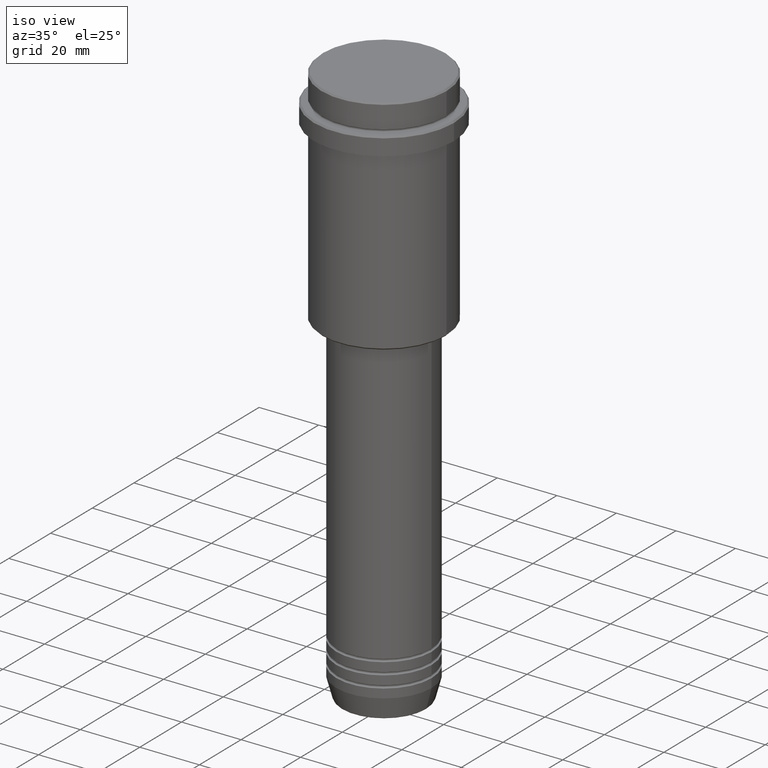
[diagram: clean part render]
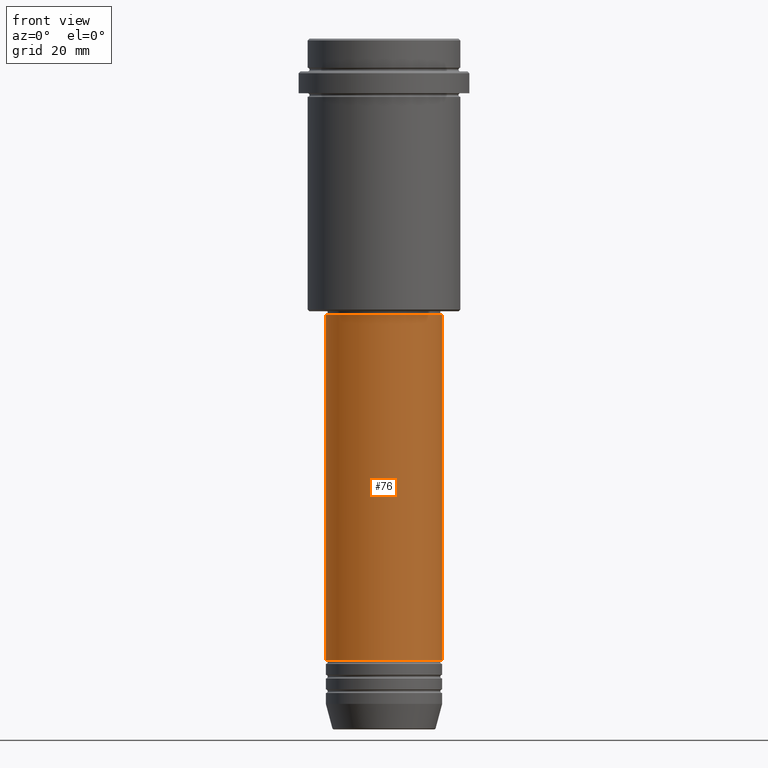
[diagram: tour spotlight — one face highlighted and labeled with its STEP entity id]
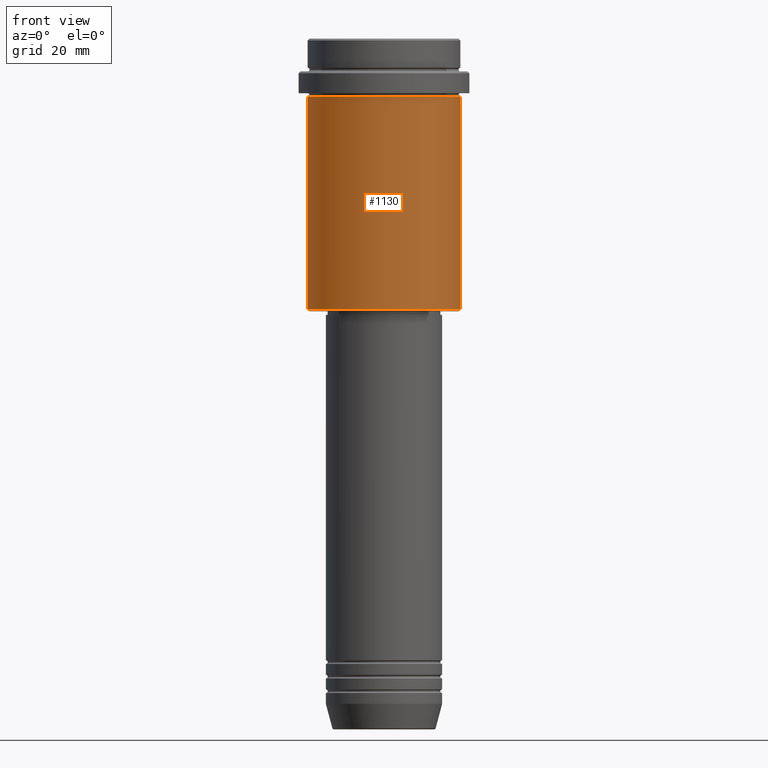
[diagram: tour spotlight — one face highlighted and labeled with its STEP entity id]
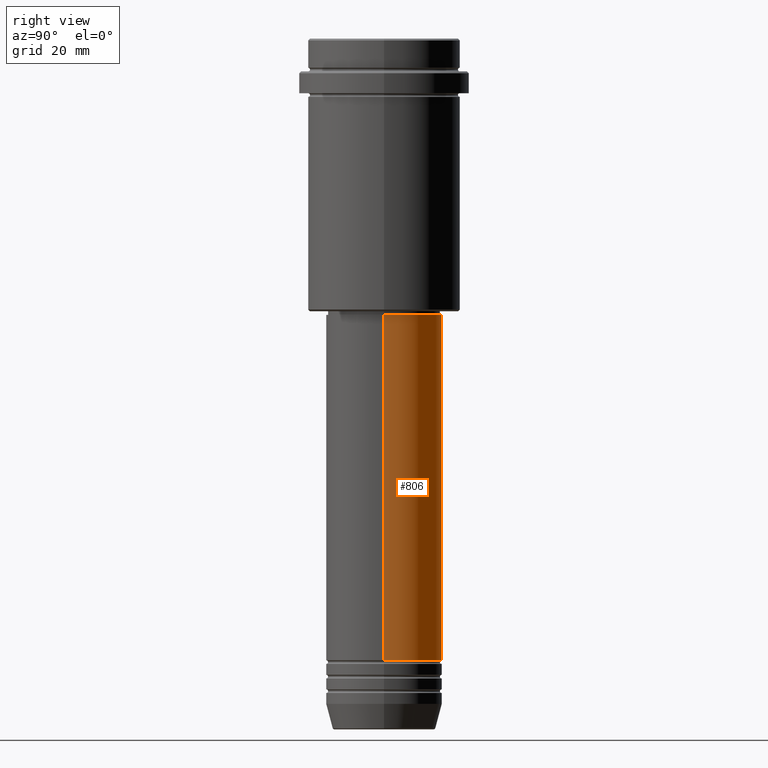
[diagram: tour spotlight — one face highlighted and labeled with its STEP entity id]
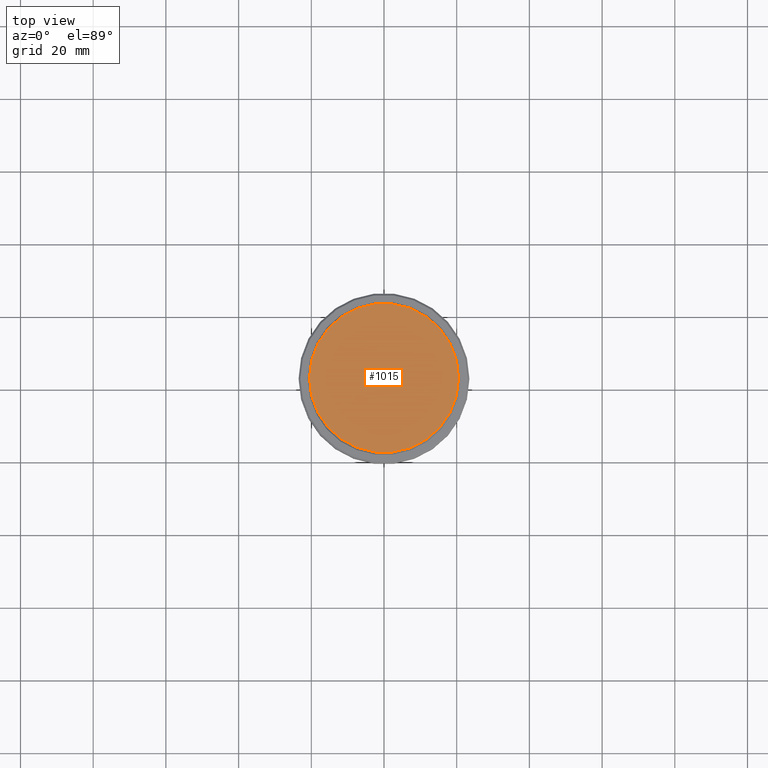
[diagram: tour spotlight — one face highlighted and labeled with its STEP entity id]
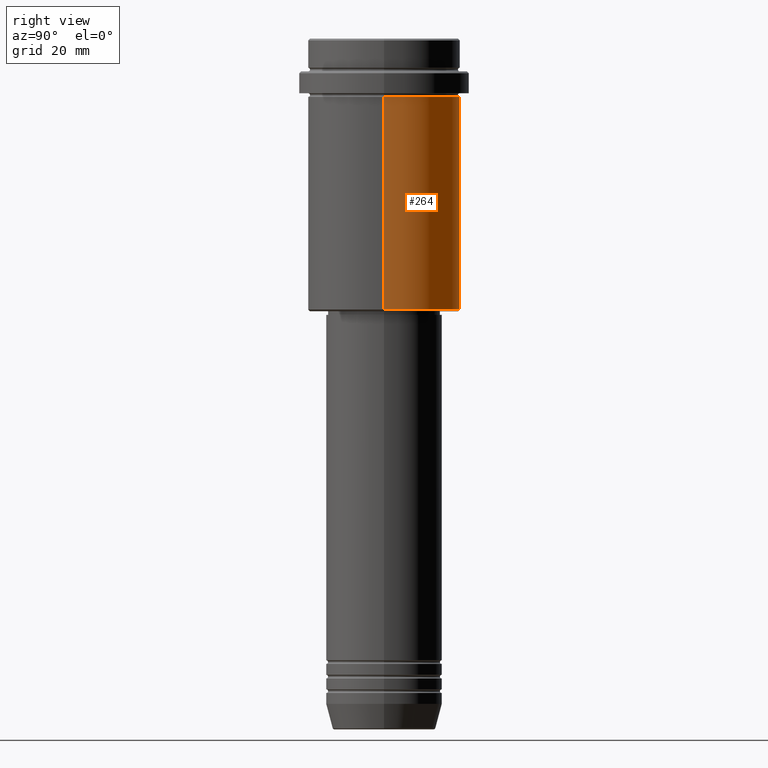
[diagram: tour spotlight — one face highlighted and labeled with its STEP entity id]
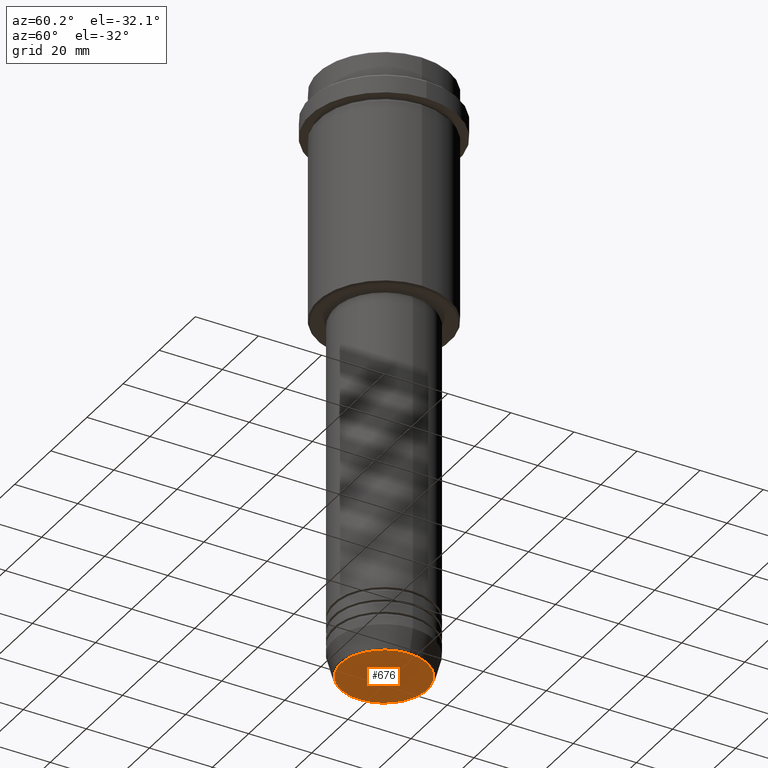
[diagram: tour spotlight — one face highlighted and labeled with its STEP entity id]
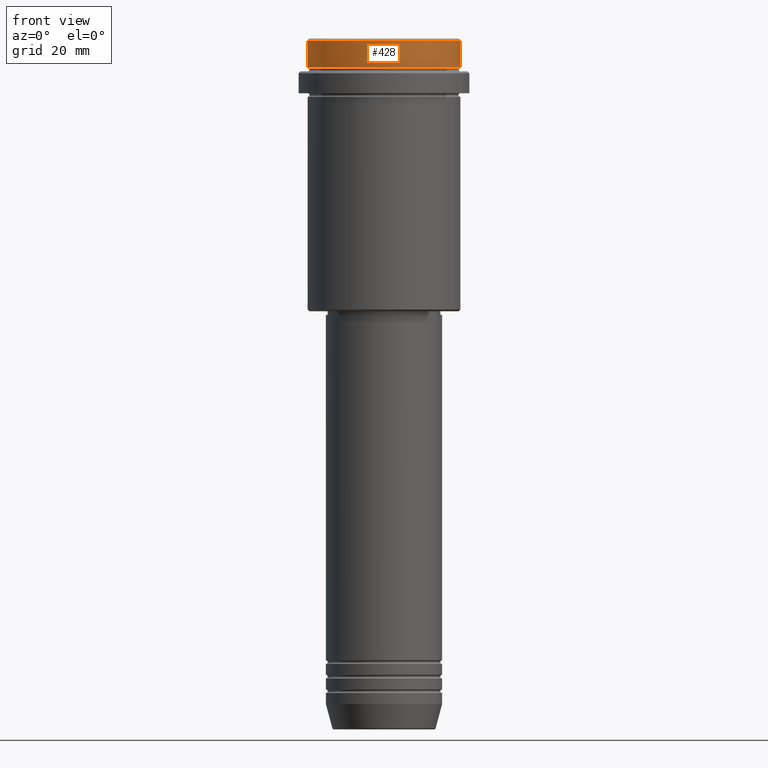
[diagram: tour spotlight — one face highlighted and labeled with its STEP entity id]
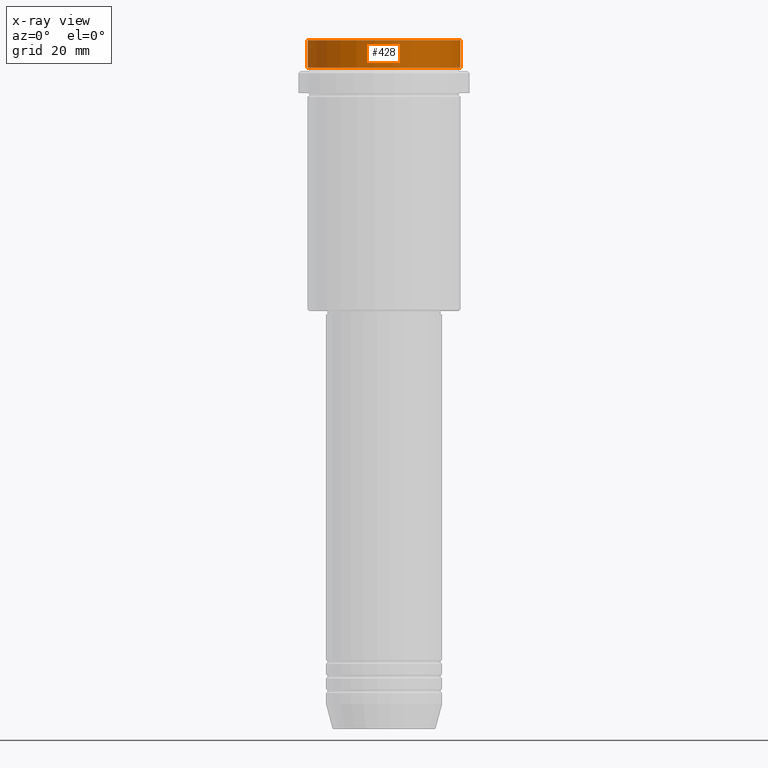
[diagram: x-ray of the same camera — body ghosted, this tour face saturated]
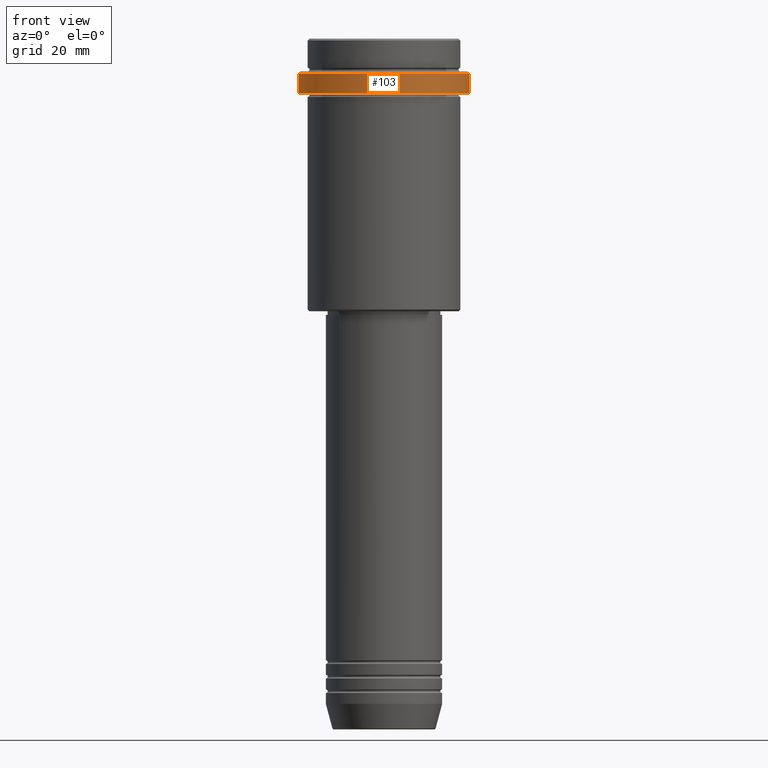
[diagram: tour spotlight — one face highlighted and labeled with its STEP entity id]
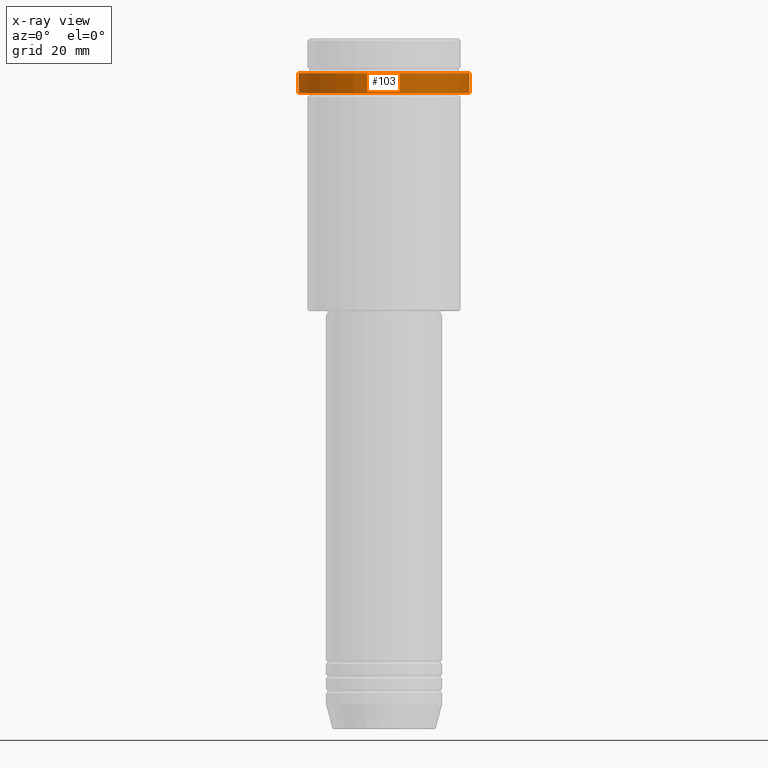
[diagram: x-ray of the same camera — body ghosted, this tour face saturated]
A machine part: a face-by-face anatomy tour. The part has 52 B-rep faces; the first image is the clean iso view, then the 8 largest visible faces are spotlighted one at a time (largest first), each with its STEP entity span.

Face 1 — front view, entity #76. In plain terms, the highlighted cylindrical surface (partial cylindrical patch) has radius 16 mm, axis along (-0, -0, 1).
Definition (entity closure, byte-faithful):
#76 = ADVANCED_FACE ( 'NONE', ( #1119 ), #256, .T. ) ;
#122 = EDGE_CURVE ( 'NONE', #443, #667, #200, .T. ) ;
#200 = CIRCLE ( 'NONE', #1136, 16.00000000000000000 ) ;
#235 = CARTESIAN_POINT ( 'NONE',  ( 0.000000000000000000, 0.000000000000000000, -76.00000000000000000 ) ) ;
#256 = CYLINDRICAL_SURFACE ( 'NONE', #268, 16.00000000000000000 ) ;
#262 = CARTESIAN_POINT ( 'NONE',  ( 16.00000000000000000, 0.000000000000000000, 0.000000000000000000 ) ) ;
#268 = AXIS2_PLACEMENT_3D ( 'NONE', #1017, #904, #831 ) ;
#359 = DIRECTION ( 'NONE',  ( -0.000000000000000000, -0.000000000000000000, 1.000000000000000000 ) ) ;
#370 = CARTESIAN_POINT ( 'NONE',  ( -16.00000000000000355, 1.959434878635765526E-15, -76.00000000000000000 ) ) ;
#373 = DIRECTION ( 'NONE',  ( -0.000000000000000000, -0.000000000000000000, 1.000000000000000000 ) ) ;
#407 = EDGE_CURVE ( 'NONE', #443, #463, #910, .T. ) ;
#443 = VERTEX_POINT ( 'NONE', #795 ) ;
#463 = VERTEX_POINT ( 'NONE', #370 ) ;
#482 = ORIENTED_EDGE ( 'NONE', *, *, #1348, .F. ) ;
#593 = DIRECTION ( 'NONE',  ( -0.000000000000000000, -0.000000000000000000, 1.000000000000000000 ) ) ;
#667 = VERTEX_POINT ( 'NONE', #1131 ) ;
#722 = CARTESIAN_POINT ( 'NONE',  ( 16.00000000000000355, 0.000000000000000000, -76.00000000000000000 ) ) ;
#723 = EDGE_LOOP ( 'NONE', ( #1129, #1149, #814, #482 ) ) ;
#725 = DIRECTION ( 'NONE',  ( 1.000000000000000000, 0.000000000000000000, 0.000000000000000000 ) ) ;
#735 = AXIS2_PLACEMENT_3D ( 'NONE', #235, #373, #1221 ) ;
#795 = CARTESIAN_POINT ( 'NONE',  ( -16.00000000000000000, 1.959434878635765131E-15, -170.9999999999998863 ) ) ;
#814 = ORIENTED_EDGE ( 'NONE', *, *, #868, .T. ) ;
#820 = CARTESIAN_POINT ( 'NONE',  ( 0.000000000000000000, 0.000000000000000000, -170.9999999999998863 ) ) ;
#831 = DIRECTION ( 'NONE',  ( 1.000000000000000000, 0.000000000000000000, 0.000000000000000000 ) ) ;
#868 = EDGE_CURVE ( 'NONE', #667, #992, #1242, .T. ) ;
#904 = DIRECTION ( 'NONE',  ( -0.000000000000000000, -0.000000000000000000, 1.000000000000000000 ) ) ;
#910 = LINE ( 'NONE', #1099, #1230 ) ;
#992 = VERTEX_POINT ( 'NONE', #722 ) ;
#1017 = CARTESIAN_POINT ( 'NONE',  ( 0.000000000000000000, 0.000000000000000000, 0.000000000000000000 ) ) ;
#1099 = CARTESIAN_POINT ( 'NONE',  ( -16.00000000000000000, 1.959434878635765131E-15, 0.000000000000000000 ) ) ;
#1105 = DIRECTION ( 'NONE',  ( -0.000000000000000000, -0.000000000000000000, 1.000000000000000000 ) ) ;
#1119 = FACE_OUTER_BOUND ( 'NONE', #723, .T. ) ;
#1129 = ORIENTED_EDGE ( 'NONE', *, *, #407, .F. ) ;
#1131 = CARTESIAN_POINT ( 'NONE',  ( 16.00000000000000000, 0.000000000000000000, -170.9999999999998863 ) ) ;
#1136 = AXIS2_PLACEMENT_3D ( 'NONE', #820, #593, #725 ) ;
#1149 = ORIENTED_EDGE ( 'NONE', *, *, #122, .T. ) ;
#1209 = CIRCLE ( 'NONE', #735, 16.00000000000000355 ) ;
#1221 = DIRECTION ( 'NONE',  ( 1.000000000000000000, 0.000000000000000000, 0.000000000000000000 ) ) ;
#1230 = VECTOR ( 'NONE', #1105, 1000.000000000000000 ) ;
#1242 = LINE ( 'NONE', #262, #1411 ) ;
#1348 = EDGE_CURVE ( 'NONE', #463, #992, #1209, .T. ) ;
#1411 = VECTOR ( 'NONE', #359, 1000.000000000000000 ) ;

Face 2 — front view, entity #1130. In plain terms, the highlighted cylindrical surface (partial cylindrical patch) has radius 21 mm, axis along (-0, -0, 1).
Definition (entity closure, byte-faithful):
#68 = DIRECTION ( 'NONE',  ( 1.000000000000000000, 0.000000000000000000, 0.000000000000000000 ) ) ;
#114 = AXIS2_PLACEMENT_3D ( 'NONE', #1091, #539, #665 ) ;
#171 = EDGE_LOOP ( 'NONE', ( #494, #1106, #1286, #876 ) ) ;
#176 = DIRECTION ( 'NONE',  ( -0.000000000000000000, -0.000000000000000000, 1.000000000000000000 ) ) ;
#217 = CARTESIAN_POINT ( 'NONE',  ( 0.000000000000000000, 0.000000000000000000, -74.49999999999998579 ) ) ;
#270 = VECTOR ( 'NONE', #757, 1000.000000000000000 ) ;
#273 = EDGE_CURVE ( 'NONE', #677, #1109, #1387, .T. ) ;
#280 = LINE ( 'NONE', #718, #779 ) ;
#300 = CARTESIAN_POINT ( 'NONE',  ( 0.000000000000000000, 0.000000000000000000, -16.00000000000000355 ) ) ;
#343 = CIRCLE ( 'NONE', #732, 21.00000000000000000 ) ;
#450 = CYLINDRICAL_SURFACE ( 'NONE', #114, 21.00000000000000000 ) ;
#478 = VERTEX_POINT ( 'NONE', #675 ) ;
#485 = CIRCLE ( 'NONE', #796, 21.00000000000000000 ) ;
#494 = ORIENTED_EDGE ( 'NONE', *, *, #273, .F. ) ;
#513 = DIRECTION ( 'NONE',  ( -0.000000000000000000, -0.000000000000000000, 1.000000000000000000 ) ) ;
#539 = DIRECTION ( 'NONE',  ( -0.000000000000000000, -0.000000000000000000, 1.000000000000000000 ) ) ;
#602 = EDGE_CURVE ( 'NONE', #1334, #478, #280, .T. ) ;
#665 = DIRECTION ( 'NONE',  ( 1.000000000000000000, 0.000000000000000000, 0.000000000000000000 ) ) ;
#675 = CARTESIAN_POINT ( 'NONE',  ( 21.00000000000000000, 0.000000000000000000, -16.00000000000000355 ) ) ;
#677 = VERTEX_POINT ( 'NONE', #841 ) ;
#718 = CARTESIAN_POINT ( 'NONE',  ( 21.00000000000000000, 0.000000000000000000, 0.000000000000000000 ) ) ;
#732 = AXIS2_PLACEMENT_3D ( 'NONE', #300, #176, #68 ) ;
#734 = EDGE_CURVE ( 'NONE', #677, #1334, #485, .T. ) ;
#757 = DIRECTION ( 'NONE',  ( -0.000000000000000000, -0.000000000000000000, 1.000000000000000000 ) ) ;
#779 = VECTOR ( 'NONE', #513, 1000.000000000000000 ) ;
#796 = AXIS2_PLACEMENT_3D ( 'NONE', #217, #866, #1195 ) ;
#799 = CARTESIAN_POINT ( 'NONE',  ( 21.00000000000000000, 0.000000000000000000, -74.49999999999998579 ) ) ;
#841 = CARTESIAN_POINT ( 'NONE',  ( -21.00000000000000000, 2.571758278209441661E-15, -74.49999999999998579 ) ) ;
#851 = CARTESIAN_POINT ( 'NONE',  ( -21.00000000000000000, 2.571758278209441661E-15, 0.000000000000000000 ) ) ;
#866 = DIRECTION ( 'NONE',  ( -0.000000000000000000, -0.000000000000000000, 1.000000000000000000 ) ) ;
#876 = ORIENTED_EDGE ( 'NONE', *, *, #1028, .F. ) ;
#997 = FACE_OUTER_BOUND ( 'NONE', #171, .T. ) ;
#1028 = EDGE_CURVE ( 'NONE', #1109, #478, #343, .T. ) ;
#1091 = CARTESIAN_POINT ( 'NONE',  ( 0.000000000000000000, 0.000000000000000000, 0.000000000000000000 ) ) ;
#1106 = ORIENTED_EDGE ( 'NONE', *, *, #734, .T. ) ;
#1109 = VERTEX_POINT ( 'NONE', #1203 ) ;
#1130 = ADVANCED_FACE ( 'NONE', ( #997 ), #450, .T. ) ;
#1195 = DIRECTION ( 'NONE',  ( -1.000000000000000000, 0.000000000000000000, 0.000000000000000000 ) ) ;
#1203 = CARTESIAN_POINT ( 'NONE',  ( -21.00000000000000000, 2.571758278209441661E-15, -16.00000000000000355 ) ) ;
#1286 = ORIENTED_EDGE ( 'NONE', *, *, #602, .T. ) ;
#1334 = VERTEX_POINT ( 'NONE', #799 ) ;
#1387 = LINE ( 'NONE', #851, #270 ) ;

Face 3 — right view, entity #806. In plain terms, the highlighted cylindrical surface (partial cylindrical patch) has radius 16 mm, axis along (-0, -0, 1).
Definition (entity closure, byte-faithful):
#262 = CARTESIAN_POINT ( 'NONE',  ( 16.00000000000000000, 0.000000000000000000, 0.000000000000000000 ) ) ;
#359 = DIRECTION ( 'NONE',  ( -0.000000000000000000, -0.000000000000000000, 1.000000000000000000 ) ) ;
#370 = CARTESIAN_POINT ( 'NONE',  ( -16.00000000000000355, 1.959434878635765526E-15, -76.00000000000000000 ) ) ;
#391 = CIRCLE ( 'NONE', #411, 16.00000000000000355 ) ;
#407 = EDGE_CURVE ( 'NONE', #443, #463, #910, .T. ) ;
#411 = AXIS2_PLACEMENT_3D ( 'NONE', #949, #591, #713 ) ;
#443 = VERTEX_POINT ( 'NONE', #795 ) ;
#455 = ORIENTED_EDGE ( 'NONE', *, *, #868, .F. ) ;
#463 = VERTEX_POINT ( 'NONE', #370 ) ;
#502 = DIRECTION ( 'NONE',  ( -0.000000000000000000, -0.000000000000000000, 1.000000000000000000 ) ) ;
#519 = EDGE_CURVE ( 'NONE', #992, #463, #391, .T. ) ;
#559 = EDGE_CURVE ( 'NONE', #667, #443, #1115, .T. ) ;
#591 = DIRECTION ( 'NONE',  ( -0.000000000000000000, -0.000000000000000000, 1.000000000000000000 ) ) ;
#667 = VERTEX_POINT ( 'NONE', #1131 ) ;
#710 = AXIS2_PLACEMENT_3D ( 'NONE', #1150, #502, #1039 ) ;
#713 = DIRECTION ( 'NONE',  ( 1.000000000000000000, 0.000000000000000000, 0.000000000000000000 ) ) ;
#722 = CARTESIAN_POINT ( 'NONE',  ( 16.00000000000000355, 0.000000000000000000, -76.00000000000000000 ) ) ;
#795 = CARTESIAN_POINT ( 'NONE',  ( -16.00000000000000000, 1.959434878635765131E-15, -170.9999999999998863 ) ) ;
#806 = ADVANCED_FACE ( 'NONE', ( #854 ), #1285, .T. ) ;
#807 = DIRECTION ( 'NONE',  ( -0.000000000000000000, -0.000000000000000000, 1.000000000000000000 ) ) ;
#808 = ORIENTED_EDGE ( 'NONE', *, *, #407, .T. ) ;
#854 = FACE_OUTER_BOUND ( 'NONE', #1320, .T. ) ;
#868 = EDGE_CURVE ( 'NONE', #667, #992, #1242, .T. ) ;
#910 = LINE ( 'NONE', #1099, #1230 ) ;
#949 = CARTESIAN_POINT ( 'NONE',  ( 0.000000000000000000, 0.000000000000000000, -76.00000000000000000 ) ) ;
#992 = VERTEX_POINT ( 'NONE', #722 ) ;
#1018 = DIRECTION ( 'NONE',  ( 1.000000000000000000, 0.000000000000000000, 0.000000000000000000 ) ) ;
#1023 = CARTESIAN_POINT ( 'NONE',  ( 0.000000000000000000, 0.000000000000000000, 0.000000000000000000 ) ) ;
#1039 = DIRECTION ( 'NONE',  ( 1.000000000000000000, 0.000000000000000000, 0.000000000000000000 ) ) ;
#1095 = AXIS2_PLACEMENT_3D ( 'NONE', #1023, #807, #1018 ) ;
#1099 = CARTESIAN_POINT ( 'NONE',  ( -16.00000000000000000, 1.959434878635765131E-15, 0.000000000000000000 ) ) ;
#1105 = DIRECTION ( 'NONE',  ( -0.000000000000000000, -0.000000000000000000, 1.000000000000000000 ) ) ;
#1115 = CIRCLE ( 'NONE', #710, 16.00000000000000000 ) ;
#1131 = CARTESIAN_POINT ( 'NONE',  ( 16.00000000000000000, 0.000000000000000000, -170.9999999999998863 ) ) ;
#1150 = CARTESIAN_POINT ( 'NONE',  ( 0.000000000000000000, 0.000000000000000000, -170.9999999999998863 ) ) ;
#1177 = ORIENTED_EDGE ( 'NONE', *, *, #559, .T. ) ;
#1230 = VECTOR ( 'NONE', #1105, 1000.000000000000000 ) ;
#1242 = LINE ( 'NONE', #262, #1411 ) ;
#1285 = CYLINDRICAL_SURFACE ( 'NONE', #1095, 16.00000000000000000 ) ;
#1292 = ORIENTED_EDGE ( 'NONE', *, *, #519, .F. ) ;
#1320 = EDGE_LOOP ( 'NONE', ( #1177, #808, #1292, #455 ) ) ;
#1411 = VECTOR ( 'NONE', #359, 1000.000000000000000 ) ;

Face 4 — top view, entity #1015. In plain terms, the highlighted planar face has unit normal (0, -0, 1).
Definition (entity closure, byte-faithful):
#62 = AXIS2_PLACEMENT_3D ( 'NONE', #717, #501, #929 ) ;
#70 = ORIENTED_EDGE ( 'NONE', *, *, #714, .T. ) ;
#91 = DIRECTION ( 'NONE',  ( 1.000000000000000000, 0.000000000000000000, 0.000000000000000000 ) ) ;
#197 = FACE_OUTER_BOUND ( 'NONE', #517, .T. ) ;
#247 = VERTEX_POINT ( 'NONE', #860 ) ;
#295 = CARTESIAN_POINT ( 'NONE',  ( 0.000000000000000000, 0.000000000000000000, 0.000000000000000000 ) ) ;
#365 = AXIS2_PLACEMENT_3D ( 'NONE', #1304, #1399, #525 ) ;
#408 = PLANE ( 'NONE',  #62 ) ;
#501 = DIRECTION ( 'NONE',  ( 0.000000000000000000, -0.000000000000000000, 1.000000000000000000 ) ) ;
#517 = EDGE_LOOP ( 'NONE', ( #70, #1374 ) ) ;
#525 = DIRECTION ( 'NONE',  ( 1.000000000000000000, 0.000000000000000000, 0.000000000000000000 ) ) ;
#549 = CARTESIAN_POINT ( 'NONE',  ( -20.49999999999998934, 0.000000000000000000, 0.000000000000000000 ) ) ;
#616 = CIRCLE ( 'NONE', #365, 20.49999999999998934 ) ;
#714 = EDGE_CURVE ( 'NONE', #766, #247, #616, .T. ) ;
#717 = CARTESIAN_POINT ( 'NONE',  ( 0.000000000000000000, 0.000000000000000000, 0.000000000000000000 ) ) ;
#727 = EDGE_CURVE ( 'NONE', #247, #766, #1389, .T. ) ;
#766 = VERTEX_POINT ( 'NONE', #549 ) ;
#823 = AXIS2_PLACEMENT_3D ( 'NONE', #295, #955, #91 ) ;
#860 = CARTESIAN_POINT ( 'NONE',  ( 20.49999999999998934, 2.541142108230757480E-15, 0.000000000000000000 ) ) ;
#929 = DIRECTION ( 'NONE',  ( 1.000000000000000000, 0.000000000000000000, 0.000000000000000000 ) ) ;
#955 = DIRECTION ( 'NONE',  ( -0.000000000000000000, -0.000000000000000000, 1.000000000000000000 ) ) ;
#1015 = ADVANCED_FACE ( 'NONE', ( #197 ), #408, .T. ) ;
#1304 = CARTESIAN_POINT ( 'NONE',  ( 0.000000000000000000, 0.000000000000000000, 0.000000000000000000 ) ) ;
#1374 = ORIENTED_EDGE ( 'NONE', *, *, #727, .T. ) ;
#1389 = CIRCLE ( 'NONE', #823, 20.49999999999998934 ) ;
#1399 = DIRECTION ( 'NONE',  ( -0.000000000000000000, -0.000000000000000000, 1.000000000000000000 ) ) ;

Face 5 — right view, entity #264. In plain terms, the highlighted cylindrical surface (partial cylindrical patch) has radius 21 mm, axis along (-0, -0, 1).
Definition (entity closure, byte-faithful):
#105 = FACE_OUTER_BOUND ( 'NONE', #1102, .T. ) ;
#125 = EDGE_CURVE ( 'NONE', #1334, #677, #885, .T. ) ;
#159 = AXIS2_PLACEMENT_3D ( 'NONE', #195, #988, #1415 ) ;
#173 = CARTESIAN_POINT ( 'NONE',  ( 0.000000000000000000, 0.000000000000000000, -74.49999999999998579 ) ) ;
#195 = CARTESIAN_POINT ( 'NONE',  ( 0.000000000000000000, 0.000000000000000000, 0.000000000000000000 ) ) ;
#218 = CYLINDRICAL_SURFACE ( 'NONE', #159, 21.00000000000000000 ) ;
#229 = CIRCLE ( 'NONE', #619, 21.00000000000000000 ) ;
#234 = ORIENTED_EDGE ( 'NONE', *, *, #273, .T. ) ;
#264 = ADVANCED_FACE ( 'NONE', ( #105 ), #218, .T. ) ;
#270 = VECTOR ( 'NONE', #757, 1000.000000000000000 ) ;
#273 = EDGE_CURVE ( 'NONE', #677, #1109, #1387, .T. ) ;
#280 = LINE ( 'NONE', #718, #779 ) ;
#387 = AXIS2_PLACEMENT_3D ( 'NONE', #173, #1252, #1036 ) ;
#478 = VERTEX_POINT ( 'NONE', #675 ) ;
#513 = DIRECTION ( 'NONE',  ( -0.000000000000000000, -0.000000000000000000, 1.000000000000000000 ) ) ;
#602 = EDGE_CURVE ( 'NONE', #1334, #478, #280, .T. ) ;
#619 = AXIS2_PLACEMENT_3D ( 'NONE', #1107, #893, #672 ) ;
#653 = ORIENTED_EDGE ( 'NONE', *, *, #602, .F. ) ;
#672 = DIRECTION ( 'NONE',  ( 1.000000000000000000, 0.000000000000000000, 0.000000000000000000 ) ) ;
#675 = CARTESIAN_POINT ( 'NONE',  ( 21.00000000000000000, 0.000000000000000000, -16.00000000000000355 ) ) ;
#677 = VERTEX_POINT ( 'NONE', #841 ) ;
#718 = CARTESIAN_POINT ( 'NONE',  ( 21.00000000000000000, 0.000000000000000000, 0.000000000000000000 ) ) ;
#757 = DIRECTION ( 'NONE',  ( -0.000000000000000000, -0.000000000000000000, 1.000000000000000000 ) ) ;
#779 = VECTOR ( 'NONE', #513, 1000.000000000000000 ) ;
#799 = CARTESIAN_POINT ( 'NONE',  ( 21.00000000000000000, 0.000000000000000000, -74.49999999999998579 ) ) ;
#841 = CARTESIAN_POINT ( 'NONE',  ( -21.00000000000000000, 2.571758278209441661E-15, -74.49999999999998579 ) ) ;
#851 = CARTESIAN_POINT ( 'NONE',  ( -21.00000000000000000, 2.571758278209441661E-15, 0.000000000000000000 ) ) ;
#885 = CIRCLE ( 'NONE', #387, 21.00000000000000000 ) ;
#893 = DIRECTION ( 'NONE',  ( -0.000000000000000000, -0.000000000000000000, 1.000000000000000000 ) ) ;
#988 = DIRECTION ( 'NONE',  ( -0.000000000000000000, -0.000000000000000000, 1.000000000000000000 ) ) ;
#1036 = DIRECTION ( 'NONE',  ( -1.000000000000000000, 0.000000000000000000, 0.000000000000000000 ) ) ;
#1102 = EDGE_LOOP ( 'NONE', ( #1125, #234, #1220, #653 ) ) ;
#1107 = CARTESIAN_POINT ( 'NONE',  ( 0.000000000000000000, 0.000000000000000000, -16.00000000000000355 ) ) ;
#1109 = VERTEX_POINT ( 'NONE', #1203 ) ;
#1125 = ORIENTED_EDGE ( 'NONE', *, *, #125, .T. ) ;
#1203 = CARTESIAN_POINT ( 'NONE',  ( -21.00000000000000000, 2.571758278209441661E-15, -16.00000000000000355 ) ) ;
#1220 = ORIENTED_EDGE ( 'NONE', *, *, #1243, .F. ) ;
#1243 = EDGE_CURVE ( 'NONE', #478, #1109, #229, .T. ) ;
#1252 = DIRECTION ( 'NONE',  ( -0.000000000000000000, -0.000000000000000000, 1.000000000000000000 ) ) ;
#1334 = VERTEX_POINT ( 'NONE', #799 ) ;
#1387 = LINE ( 'NONE', #851, #270 ) ;
#1415 = DIRECTION ( 'NONE',  ( 1.000000000000000000, 0.000000000000000000, 0.000000000000000000 ) ) ;

Face 6 — auxiliary view, entity #676. In plain terms, the highlighted planar face has unit normal (0, -0, 1).
Definition (entity closure, byte-faithful):
#98 = PLANE ( 'NONE',  #509 ) ;
#104 = CARTESIAN_POINT ( 'NONE',  ( 0.000000000000000000, 0.000000000000000000, -190.0000000000000000 ) ) ;
#106 = VERTEX_POINT ( 'NONE', #1259 ) ;
#161 = EDGE_CURVE ( 'NONE', #106, #495, #933, .T. ) ;
#183 = CIRCLE ( 'NONE', #983, 13.74069215899265828 ) ;
#356 = CARTESIAN_POINT ( 'NONE',  ( 0.000000000000000000, 0.000000000000000000, -190.0000000000000000 ) ) ;
#390 = EDGE_CURVE ( 'NONE', #495, #106, #183, .T. ) ;
#490 = DIRECTION ( 'NONE',  ( 0.000000000000000000, 0.000000000000000000, -1.000000000000000000 ) ) ;
#495 = VERTEX_POINT ( 'NONE', #520 ) ;
#509 = AXIS2_PLACEMENT_3D ( 'NONE', #104, #987, #1270 ) ;
#520 = CARTESIAN_POINT ( 'NONE',  ( 13.74069215899265828, 0.000000000000000000, -190.0000000000000000 ) ) ;
#567 = ORIENTED_EDGE ( 'NONE', *, *, #390, .T. ) ;
#639 = FACE_OUTER_BOUND ( 'NONE', #1397, .T. ) ;
#669 = DIRECTION ( 'NONE',  ( 0.000000000000000000, 0.000000000000000000, -1.000000000000000000 ) ) ;
#676 = ADVANCED_FACE ( 'NONE', ( #639 ), #98, .F. ) ;
#715 = CARTESIAN_POINT ( 'NONE',  ( 0.000000000000000000, 0.000000000000000000, -190.0000000000000000 ) ) ;
#920 = DIRECTION ( 'NONE',  ( 1.000000000000000000, 0.000000000000000000, 0.000000000000000000 ) ) ;
#933 = CIRCLE ( 'NONE', #1293, 13.74069215899265828 ) ;
#983 = AXIS2_PLACEMENT_3D ( 'NONE', #356, #669, #1225 ) ;
#987 = DIRECTION ( 'NONE',  ( 0.000000000000000000, -0.000000000000000000, 1.000000000000000000 ) ) ;
#1225 = DIRECTION ( 'NONE',  ( 1.000000000000000000, 0.000000000000000000, 0.000000000000000000 ) ) ;
#1247 = ORIENTED_EDGE ( 'NONE', *, *, #161, .T. ) ;
#1259 = CARTESIAN_POINT ( 'NONE',  ( -13.74069215899265828, 1.712322416342415986E-15, -190.0000000000000000 ) ) ;
#1270 = DIRECTION ( 'NONE',  ( 1.000000000000000000, 0.000000000000000000, 0.000000000000000000 ) ) ;
#1293 = AXIS2_PLACEMENT_3D ( 'NONE', #715, #490, #920 ) ;
#1397 = EDGE_LOOP ( 'NONE', ( #567, #1247 ) ) ;

Face 7 — front view, entity #428. An x-ray twin of the same camera follows (body ghosted, this face saturated) — the face is partly hidden behind the body. In plain terms, the highlighted cylindrical surface (partial cylindrical patch) has radius 21 mm, axis along (-0, -0, 1).
Definition (entity closure, byte-faithful):
#33 = EDGE_LOOP ( 'NONE', ( #1197, #554, #741, #954 ) ) ;
#58 = AXIS2_PLACEMENT_3D ( 'NONE', #1174, #212, #641 ) ;
#112 = VERTEX_POINT ( 'NONE', #621 ) ;
#121 = FACE_OUTER_BOUND ( 'NONE', #33, .T. ) ;
#135 = VERTEX_POINT ( 'NONE', #609 ) ;
#188 = DIRECTION ( 'NONE',  ( -0.000000000000000000, -0.000000000000000000, 1.000000000000000000 ) ) ;
#211 = CARTESIAN_POINT ( 'NONE',  ( 0.000000000000000000, 0.000000000000000000, -7.999999999999998224 ) ) ;
#212 = DIRECTION ( 'NONE',  ( 0.000000000000000000, 0.000000000000000000, -1.000000000000000000 ) ) ;
#230 = EDGE_CURVE ( 'NONE', #1044, #112, #636, .T. ) ;
#296 = VECTOR ( 'NONE', #188, 1000.000000000000000 ) ;
#388 = LINE ( 'NONE', #953, #296 ) ;
#428 = ADVANCED_FACE ( 'NONE', ( #121 ), #1344, .T. ) ;
#510 = EDGE_CURVE ( 'NONE', #135, #1044, #1350, .T. ) ;
#530 = CARTESIAN_POINT ( 'NONE',  ( 21.00000000000000000, 0.000000000000000000, -0.5000000000000108802 ) ) ;
#540 = DIRECTION ( 'NONE',  ( 1.000000000000000000, 0.000000000000000000, 0.000000000000000000 ) ) ;
#554 = ORIENTED_EDGE ( 'NONE', *, *, #731, .T. ) ;
#572 = DIRECTION ( 'NONE',  ( -0.000000000000000000, -0.000000000000000000, 1.000000000000000000 ) ) ;
#596 = VECTOR ( 'NONE', #836, 1000.000000000000000 ) ;
#609 = CARTESIAN_POINT ( 'NONE',  ( 21.00000000000000000, 0.000000000000000000, -7.999999999999998224 ) ) ;
#621 = CARTESIAN_POINT ( 'NONE',  ( -21.00000000000000000, 2.571758278209441661E-15, -0.5000000000000108802 ) ) ;
#636 = CIRCLE ( 'NONE', #58, 21.00000000000000000 ) ;
#641 = DIRECTION ( 'NONE',  ( 1.000000000000000000, 0.000000000000000000, 0.000000000000000000 ) ) ;
#693 = DIRECTION ( 'NONE',  ( 1.000000000000000000, 0.000000000000000000, 0.000000000000000000 ) ) ;
#731 = EDGE_CURVE ( 'NONE', #1324, #135, #1231, .T. ) ;
#741 = ORIENTED_EDGE ( 'NONE', *, *, #510, .T. ) ;
#830 = CARTESIAN_POINT ( 'NONE',  ( 21.00000000000000000, 0.000000000000000000, 0.000000000000000000 ) ) ;
#836 = DIRECTION ( 'NONE',  ( -0.000000000000000000, -0.000000000000000000, 1.000000000000000000 ) ) ;
#953 = CARTESIAN_POINT ( 'NONE',  ( -21.00000000000000000, 2.571758278209441661E-15, 0.000000000000000000 ) ) ;
#954 = ORIENTED_EDGE ( 'NONE', *, *, #230, .T. ) ;
#994 = CARTESIAN_POINT ( 'NONE',  ( 0.000000000000000000, 0.000000000000000000, 0.000000000000000000 ) ) ;
#1031 = CARTESIAN_POINT ( 'NONE',  ( -21.00000000000000000, 2.571758278209441661E-15, -7.999999999999998224 ) ) ;
#1044 = VERTEX_POINT ( 'NONE', #530 ) ;
#1060 = EDGE_CURVE ( 'NONE', #1324, #112, #388, .T. ) ;
#1077 = DIRECTION ( 'NONE',  ( -0.000000000000000000, -0.000000000000000000, 1.000000000000000000 ) ) ;
#1174 = CARTESIAN_POINT ( 'NONE',  ( 0.000000000000000000, 0.000000000000000000, -0.5000000000000108802 ) ) ;
#1197 = ORIENTED_EDGE ( 'NONE', *, *, #1060, .F. ) ;
#1231 = CIRCLE ( 'NONE', #1408, 21.00000000000000000 ) ;
#1324 = VERTEX_POINT ( 'NONE', #1031 ) ;
#1344 = CYLINDRICAL_SURFACE ( 'NONE', #1406, 21.00000000000000000 ) ;
#1350 = LINE ( 'NONE', #830, #596 ) ;
#1406 = AXIS2_PLACEMENT_3D ( 'NONE', #994, #572, #693 ) ;
#1408 = AXIS2_PLACEMENT_3D ( 'NONE', #211, #1077, #540 ) ;

Face 8 — front view, entity #103. An x-ray twin of the same camera follows (body ghosted, this face saturated) — the face is partly hidden behind the body. In plain terms, the highlighted cylindrical surface (partial cylindrical patch) has radius 23.5 mm, axis along (-0, -0, 1).
Definition (entity closure, byte-faithful):
#32 = CARTESIAN_POINT ( 'NONE',  ( 23.50000000000000355, 0.000000000000000000, -15.00000000000000000 ) ) ;
#72 = CYLINDRICAL_SURFACE ( 'NONE', #157, 23.50000000000000000 ) ;
#87 = CARTESIAN_POINT ( 'NONE',  ( -23.50000000000000000, 2.877919977996280320E-15, 0.000000000000000000 ) ) ;
#89 = VERTEX_POINT ( 'NONE', #603 ) ;
#103 = ADVANCED_FACE ( 'NONE', ( #399 ), #72, .T. ) ;
#145 = DIRECTION ( 'NONE',  ( -0.000000000000000000, -0.000000000000000000, 1.000000000000000000 ) ) ;
#157 = AXIS2_PLACEMENT_3D ( 'NONE', #1158, #707, #1381 ) ;
#203 = CIRCLE ( 'NONE', #574, 23.50000000000000000 ) ;
#232 = VERTEX_POINT ( 'NONE', #1078 ) ;
#274 = DIRECTION ( 'NONE',  ( 1.000000000000000000, 0.000000000000000000, 0.000000000000000000 ) ) ;
#305 = ORIENTED_EDGE ( 'NONE', *, *, #492, .T. ) ;
#328 = ORIENTED_EDGE ( 'NONE', *, *, #1175, .F. ) ;
#392 = VECTOR ( 'NONE', #145, 1000.000000000000000 ) ;
#396 = CARTESIAN_POINT ( 'NONE',  ( -23.50000000000000000, 2.877919977996280320E-15, -9.500000000000000000 ) ) ;
#397 = DIRECTION ( 'NONE',  ( 1.000000000000000000, 0.000000000000000000, 0.000000000000000000 ) ) ;
#399 = FACE_OUTER_BOUND ( 'NONE', #1069, .T. ) ;
#434 = VERTEX_POINT ( 'NONE', #32 ) ;
#444 = LINE ( 'NONE', #87, #758 ) ;
#492 = EDGE_CURVE ( 'NONE', #232, #1034, #203, .T. ) ;
#574 = AXIS2_PLACEMENT_3D ( 'NONE', #1046, #1035, #397 ) ;
#603 = CARTESIAN_POINT ( 'NONE',  ( -23.50000000000000711, 2.877919977996281109E-15, -15.00000000000000000 ) ) ;
#631 = EDGE_CURVE ( 'NONE', #89, #434, #887, .T. ) ;
#678 = ORIENTED_EDGE ( 'NONE', *, *, #631, .T. ) ;
#686 = AXIS2_PLACEMENT_3D ( 'NONE', #1357, #1250, #274 ) ;
#707 = DIRECTION ( 'NONE',  ( -0.000000000000000000, -0.000000000000000000, 1.000000000000000000 ) ) ;
#749 = DIRECTION ( 'NONE',  ( -0.000000000000000000, -0.000000000000000000, 1.000000000000000000 ) ) ;
#758 = VECTOR ( 'NONE', #749, 1000.000000000000000 ) ;
#858 = EDGE_CURVE ( 'NONE', #434, #232, #1122, .T. ) ;
#887 = CIRCLE ( 'NONE', #686, 23.50000000000000355 ) ;
#1034 = VERTEX_POINT ( 'NONE', #396 ) ;
#1035 = DIRECTION ( 'NONE',  ( 0.000000000000000000, 0.000000000000000000, -1.000000000000000000 ) ) ;
#1046 = CARTESIAN_POINT ( 'NONE',  ( 0.000000000000000000, 0.000000000000000000, -9.500000000000000000 ) ) ;
#1069 = EDGE_LOOP ( 'NONE', ( #328, #678, #1193, #305 ) ) ;
#1078 = CARTESIAN_POINT ( 'NONE',  ( 23.50000000000000000, 0.000000000000000000, -9.500000000000000000 ) ) ;
#1122 = LINE ( 'NONE', #1135, #392 ) ;
#1135 = CARTESIAN_POINT ( 'NONE',  ( 23.50000000000000000, 0.000000000000000000, 0.000000000000000000 ) ) ;
#1158 = CARTESIAN_POINT ( 'NONE',  ( 0.000000000000000000, 0.000000000000000000, 0.000000000000000000 ) ) ;
#1175 = EDGE_CURVE ( 'NONE', #89, #1034, #444, .T. ) ;
#1193 = ORIENTED_EDGE ( 'NONE', *, *, #858, .T. ) ;
#1250 = DIRECTION ( 'NONE',  ( -0.000000000000000000, -0.000000000000000000, 1.000000000000000000 ) ) ;
#1357 = CARTESIAN_POINT ( 'NONE',  ( 0.000000000000000000, 0.000000000000000000, -15.00000000000000000 ) ) ;
#1381 = DIRECTION ( 'NONE',  ( 1.000000000000000000, 0.000000000000000000, 0.000000000000000000 ) ) ;